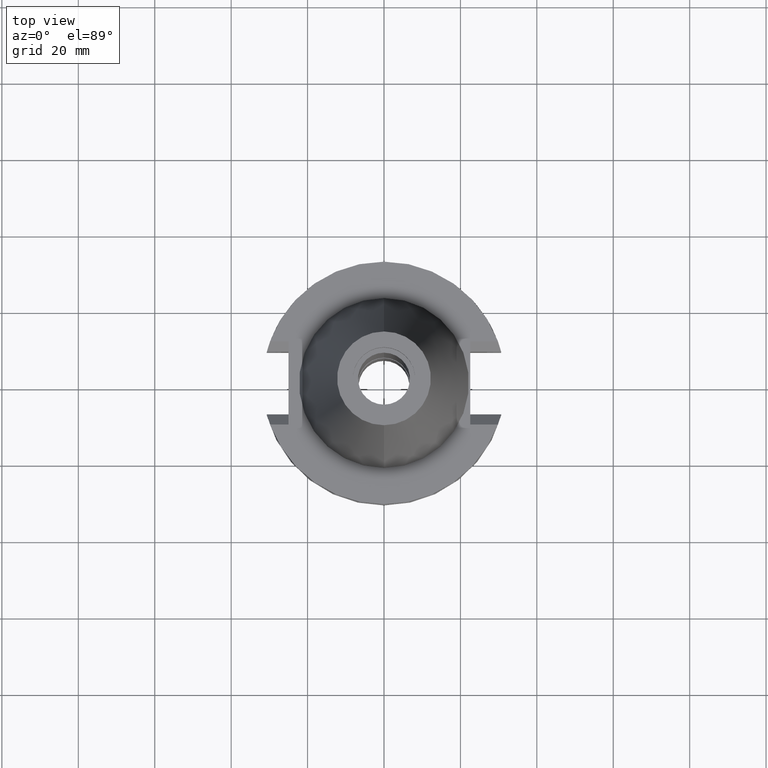
[diagram: clean part render]
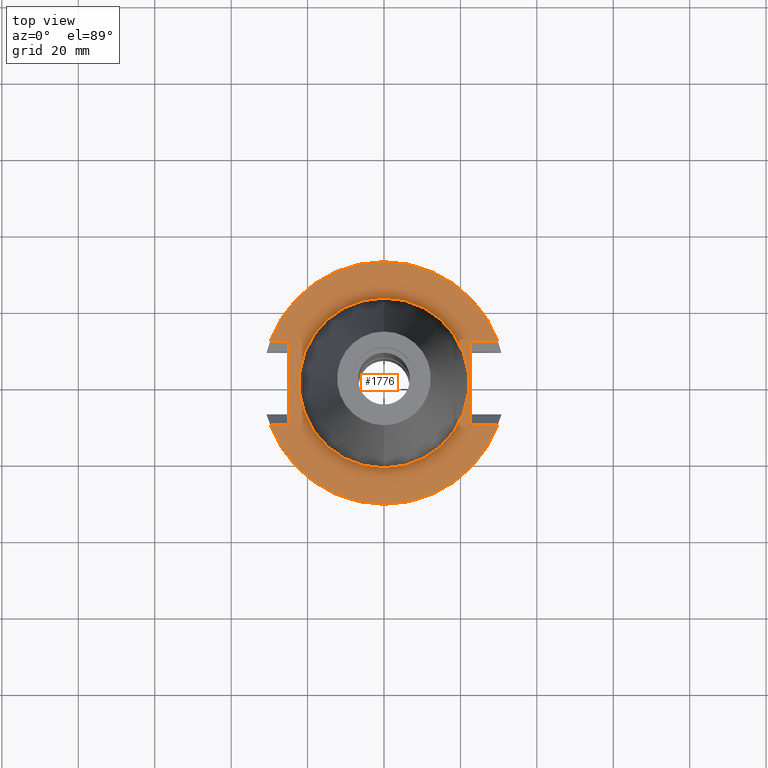
[diagram: same view with one face highlighted and labeled with its STEP entity id]
A machine part, top view. The second image highlights one B-rep face of the part: STEP entity #1776.
In plain terms, the highlighted planar face has unit normal (0, 0, -1).
Its self-contained STEP definition (entity closure, byte-faithful):
#37 = CARTESIAN_POINT ( 'NONE',  ( -24.98000000000000043, -10.89000000000000057, -1.000000000000000000 ) ) ;
#40 = VERTEX_POINT ( 'NONE', #821 ) ;
#78 = EDGE_CURVE ( 'NONE', #526, #3089, #1621, .T. ) ;
#102 = DIRECTION ( 'NONE',  ( -1.000000000000000000, 8.911138986208999927E-14, 0.0000000000000000000 ) ) ;
#226 = AXIS2_PLACEMENT_3D ( 'NONE', #645, #2194, #926 ) ;
#260 = VERTEX_POINT ( 'NONE', #1669 ) ;
#382 = LINE ( 'NONE', #803, #2564 ) ;
#407 = CARTESIAN_POINT ( 'NONE',  ( 0.0000000000000000000, 1.212400331155999925E-14, -1.000000000000000000 ) ) ;
#419 = EDGE_LOOP ( 'NONE', ( #666, #2061, #2519, #731, #2216, #547, #906, #696 ) ) ;
#457 = DIRECTION ( 'NONE',  ( 1.000000000000000000, 6.024046928780999571E-14, 0.0000000000000000000 ) ) ;
#460 = VERTEX_POINT ( 'NONE', #2613 ) ;
#474 = LINE ( 'NONE', #2244, #523 ) ;
#523 = VECTOR ( 'NONE', #3041, 1000.000000000000000 ) ;
#526 = VERTEX_POINT ( 'NONE', #37 ) ;
#547 = ORIENTED_EDGE ( 'NONE', *, *, #1218, .F. ) ;
#548 = EDGE_CURVE ( 'NONE', #2069, #2709, #3242, .T. ) ;
#577 = LINE ( 'NONE', #1856, #3094 ) ;
#582 = DIRECTION ( 'NONE',  ( 0.0000000000000000000, 0.0000000000000000000, -1.000000000000000000 ) ) ;
#597 = CARTESIAN_POINT ( 'NONE',  ( 22.57000000000000028, 10.89000000000000057, -1.000000000000000000 ) ) ;
#607 = EDGE_CURVE ( 'NONE', #260, #2802, #1954, .T. ) ;
#645 = CARTESIAN_POINT ( 'NONE',  ( 0.0000000000000000000, 2.159878943485999787E-14, -1.000000000000000000 ) ) ;
#650 = EDGE_CURVE ( 'NONE', #3011, #3249, #577, .T. ) ;
#666 = ORIENTED_EDGE ( 'NONE', *, *, #1038, .T. ) ;
#696 = ORIENTED_EDGE ( 'NONE', *, *, #650, .F. ) ;
#731 = ORIENTED_EDGE ( 'NONE', *, *, #1654, .T. ) ;
#803 = CARTESIAN_POINT ( 'NONE',  ( -24.98000000000000043, 10.89000000000000057, -1.000000000000000000 ) ) ;
#821 = CARTESIAN_POINT ( 'NONE',  ( 29.82399034335000110, -10.89000000000000057, -1.000000000001000089 ) ) ;
#851 = DIRECTION ( 'NONE',  ( 0.0000000000000000000, 1.000000000000000000, 0.0000000000000000000 ) ) ;
#906 = ORIENTED_EDGE ( 'NONE', *, *, #1682, .F. ) ;
#908 = CARTESIAN_POINT ( 'NONE',  ( 22.57000000000000028, -10.89000000000000057, -1.000000000000000000 ) ) ;
#926 = DIRECTION ( 'NONE',  ( 0.0000000000000000000, -1.000000000000000000, 0.0000000000000000000 ) ) ;
#1038 = EDGE_CURVE ( 'NONE', #3011, #2709, #2387, .T. ) ;
#1074 = DIRECTION ( 'NONE',  ( 0.0000000000000000000, -1.000000000000000000, 0.0000000000000000000 ) ) ;
#1133 = FACE_BOUND ( 'NONE', #1825, .T. ) ;
#1164 = FACE_OUTER_BOUND ( 'NONE', #419, .T. ) ;
#1209 = CARTESIAN_POINT ( 'NONE',  ( 22.57000000000000028, -10.89000000000000057, -1.000000000000000000 ) ) ;
#1218 = EDGE_CURVE ( 'NONE', #40, #3089, #2125, .T. ) ;
#1241 = CARTESIAN_POINT ( 'NONE',  ( 0.0000000000000000000, 2.159878943485999787E-14, -1.000000000000000000 ) ) ;
#1267 = CARTESIAN_POINT ( 'NONE',  ( -29.82399034335000110, 10.89000000000000057, -1.000000000000000000 ) ) ;
#1324 = ORIENTED_EDGE ( 'NONE', *, *, #607, .F. ) ;
#1352 = CARTESIAN_POINT ( 'NONE',  ( 0.0000000000000000000, 2.159878943485999787E-14, -1.000000000000000000 ) ) ;
#1359 = EDGE_CURVE ( 'NONE', #2802, #260, #3253, .T. ) ;
#1367 = DIRECTION ( 'NONE',  ( 0.0000000000000000000, 0.0000000000000000000, 1.000000000000000000 ) ) ;
#1416 = VECTOR ( 'NONE', #102, 1000.000000000000000 ) ;
#1454 = ORIENTED_EDGE ( 'NONE', *, *, #1359, .F. ) ;
#1545 = AXIS2_PLACEMENT_3D ( 'NONE', #1352, #582, #851 ) ;
#1621 = LINE ( 'NONE', #2136, #1416 ) ;
#1654 = EDGE_CURVE ( 'NONE', #460, #526, #382, .T. ) ;
#1669 = CARTESIAN_POINT ( 'NONE',  ( 0.0000000000000000000, 22.22500000000000142, -1.000000000000000000 ) ) ;
#1682 = EDGE_CURVE ( 'NONE', #3249, #40, #3219, .T. ) ;
#1705 = VECTOR ( 'NONE', #2135, 1000.000000000000000 ) ;
#1776 = ADVANCED_FACE ( 'NONE', ( #1164, #1133 ), #1913, .F. ) ;
#1825 = EDGE_LOOP ( 'NONE', ( #1324, #1454 ) ) ;
#1856 = CARTESIAN_POINT ( 'NONE',  ( 22.57000000000000028, 10.89000000000000057, -1.000000000000000000 ) ) ;
#1913 = PLANE ( 'NONE',  #2233 ) ;
#1943 = DIRECTION ( 'NONE',  ( 0.0000000000000000000, 0.0000000000000000000, -1.000000000000000000 ) ) ;
#1954 = CIRCLE ( 'NONE', #2827, 22.22500000000000142 ) ;
#1976 = CARTESIAN_POINT ( 'NONE',  ( 0.0000000000000000000, -22.22500000000000142, -1.000000000000000000 ) ) ;
#2017 = AXIS2_PLACEMENT_3D ( 'NONE', #1241, #2034, #3063 ) ;
#2034 = DIRECTION ( 'NONE',  ( 0.0000000000000000000, 0.0000000000000000000, 1.000000000000000000 ) ) ;
#2061 = ORIENTED_EDGE ( 'NONE', *, *, #548, .F. ) ;
#2069 = VERTEX_POINT ( 'NONE', #1267 ) ;
#2125 = CIRCLE ( 'NONE', #226, 31.75000000000000000 ) ;
#2134 = CARTESIAN_POINT ( 'NONE',  ( 0.0000000000000000000, 2.159878943485999787E-14, -1.000000000000000000 ) ) ;
#2135 = DIRECTION ( 'NONE',  ( 1.000000000000000000, -5.877118954907999932E-14, 0.0000000000000000000 ) ) ;
#2136 = CARTESIAN_POINT ( 'NONE',  ( -24.98000000000000043, -10.89000000000000057, -1.000000000000000000 ) ) ;
#2148 = DIRECTION ( 'NONE',  ( 0.0000000000000000000, -1.000000000000000000, 0.0000000000000000000 ) ) ;
#2172 = CARTESIAN_POINT ( 'NONE',  ( -29.82399034335000110, -10.89000000000000057, -1.000000000001000089 ) ) ;
#2194 = DIRECTION ( 'NONE',  ( 0.0000000000000000000, 0.0000000000000000000, -1.000000000000000000 ) ) ;
#2216 = ORIENTED_EDGE ( 'NONE', *, *, #78, .T. ) ;
#2233 = AXIS2_PLACEMENT_3D ( 'NONE', #407, #1943, #2416 ) ;
#2244 = CARTESIAN_POINT ( 'NONE',  ( -24.98000000000000043, 10.89000000000000057, -1.000000000000000000 ) ) ;
#2386 = DIRECTION ( 'NONE',  ( 0.0000000000000000000, 1.000000000000000000, 0.0000000000000000000 ) ) ;
#2387 = LINE ( 'NONE', #597, #1705 ) ;
#2416 = DIRECTION ( 'NONE',  ( 0.0000000000000000000, -1.000000000000000000, 0.0000000000000000000 ) ) ;
#2519 = ORIENTED_EDGE ( 'NONE', *, *, #2857, .F. ) ;
#2564 = VECTOR ( 'NONE', #2148, 1000.000000000000000 ) ;
#2613 = CARTESIAN_POINT ( 'NONE',  ( -24.98000000000000043, 10.89000000000000057, -1.000000000000000000 ) ) ;
#2709 = VERTEX_POINT ( 'NONE', #3233 ) ;
#2802 = VERTEX_POINT ( 'NONE', #1976 ) ;
#2827 = AXIS2_PLACEMENT_3D ( 'NONE', #2134, #1367, #2386 ) ;
#2844 = CARTESIAN_POINT ( 'NONE',  ( 22.57000000000000028, 10.89000000000000057, -1.000000000000000000 ) ) ;
#2857 = EDGE_CURVE ( 'NONE', #460, #2069, #474, .T. ) ;
#3011 = VERTEX_POINT ( 'NONE', #2844 ) ;
#3041 = DIRECTION ( 'NONE',  ( -1.000000000000000000, -8.911138986208999927E-14, 0.0000000000000000000 ) ) ;
#3063 = DIRECTION ( 'NONE',  ( 0.0000000000000000000, -1.000000000000000000, 0.0000000000000000000 ) ) ;
#3089 = VERTEX_POINT ( 'NONE', #2172 ) ;
#3094 = VECTOR ( 'NONE', #1074, 1000.000000000000000 ) ;
#3202 = VECTOR ( 'NONE', #457, 1000.000000000000000 ) ;
#3219 = LINE ( 'NONE', #908, #3202 ) ;
#3233 = CARTESIAN_POINT ( 'NONE',  ( 29.82399034335000110, 10.89000000000000057, -1.000000000001000089 ) ) ;
#3242 = CIRCLE ( 'NONE', #1545, 31.75000000000000000 ) ;
#3249 = VERTEX_POINT ( 'NONE', #1209 ) ;
#3253 = CIRCLE ( 'NONE', #2017, 22.22500000000000142 ) ;